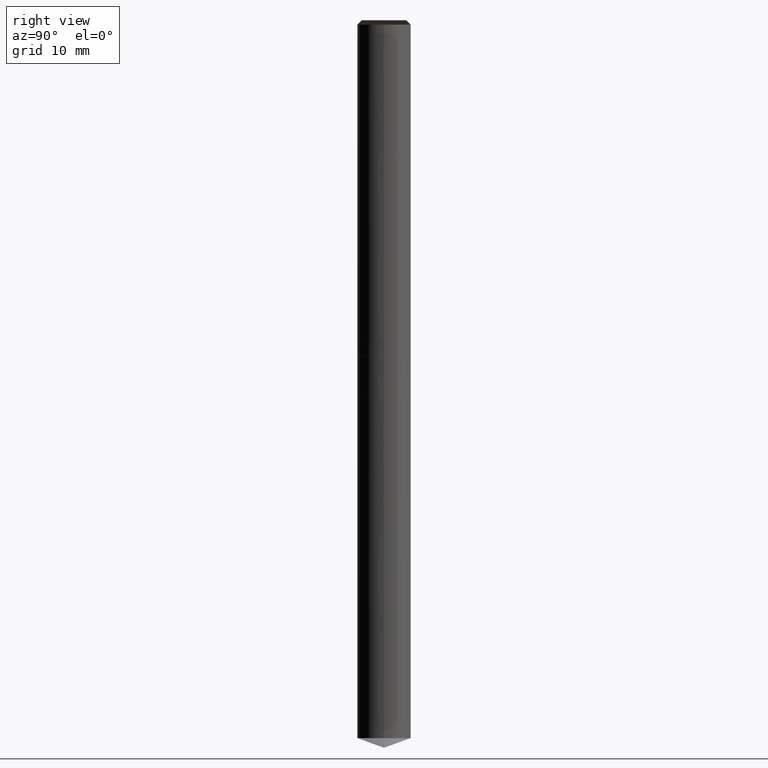
[diagram: clean part render]
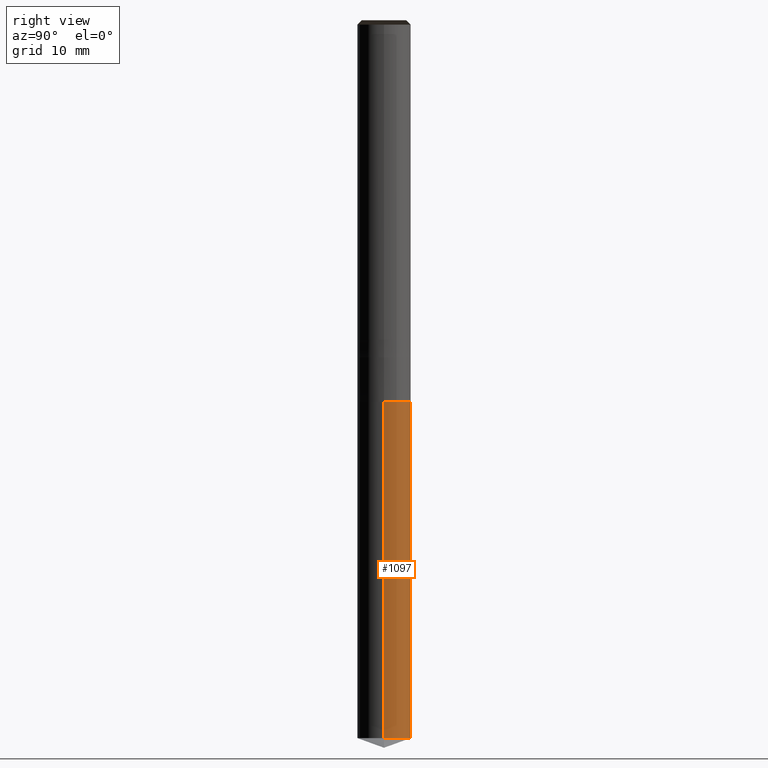
[diagram: same view with one face highlighted and labeled with its STEP entity id]
A machine part, right view. The second image highlights one B-rep face of the part: STEP entity #1097.
In plain terms, the highlighted face is a freeform B-spline surface patch.
Its self-contained STEP definition (entity closure, byte-faithful):
#1007=CARTESIAN_POINT('',(3.0,0.0,-44.908089297201));
#1008=CARTESIAN_POINT('',(3.0,3.0,-44.908089297201));
#1009=CARTESIAN_POINT('',(0.0,3.0,-44.908089297201));
#1010=CARTESIAN_POINT('',(-3.0,3.0,-44.908089297201));
#1011=CARTESIAN_POINT('',(-3.0,0.0,-44.908089297201));
#1012=CARTESIAN_POINT('',(3.0,0.0,-7.0));
#1013=CARTESIAN_POINT('',(3.0,3.0,-7.0));
#1014=CARTESIAN_POINT('',(0.0,3.0,-7.0));
#1015=CARTESIAN_POINT('',(-3.0,3.0,-7.0));
#1016=CARTESIAN_POINT('',(-3.0,0.0,-7.0));
#1078=(
BOUNDED_SURFACE()
B_SPLINE_SURFACE(1,2,(
(#1007,#1008,#1009,#1010,#1011),
(#1012,#1013,#1014,#1015,#1016)
), .UNSPECIFIED.,.F.,.F.,.F.)
B_SPLINE_SURFACE_WITH_KNOTS((2,2),(3,2,3),(
0.0,1.0),(
0.0,0.5,1.0), .UNSPECIFIED.)
GEOMETRIC_REPRESENTATION_ITEM()
RATIONAL_B_SPLINE_SURFACE(((1.0,0.707106781187,1.0,0.707106781187,1.0),
(1.0,0.707106781187,1.0,0.707106781187,1.0)
))
REPRESENTATION_ITEM('')
SURFACE()
);
#1079=(
BOUNDED_CURVE()
B_SPLINE_CURVE(2,(#1011,#1010,#1009,#1008,#1007),.UNSPECIFIED.,.F.,.F.)
B_SPLINE_CURVE_WITH_KNOTS((3,2,3),
(0.0,0.5,1.0),.UNSPECIFIED.)
CURVE()
GEOMETRIC_REPRESENTATION_ITEM()
RATIONAL_B_SPLINE_CURVE((1.0,0.707106781187,1.0,0.707106781187,1.0))
REPRESENTATION_ITEM('')
);
#1080=(
BOUNDED_CURVE()
B_SPLINE_CURVE(1,(#1007,#1012),.UNSPECIFIED.,.F.,.F.)
B_SPLINE_CURVE_WITH_KNOTS((2,2),
(0.0,1.0),.UNSPECIFIED.)
CURVE()
GEOMETRIC_REPRESENTATION_ITEM()
RATIONAL_B_SPLINE_CURVE((1.0,1.0))
REPRESENTATION_ITEM('')
);
#1081=(
BOUNDED_CURVE()
B_SPLINE_CURVE(2,(#1012,#1013,#1014,#1015,#1016),.UNSPECIFIED.,.F.,.F.)
B_SPLINE_CURVE_WITH_KNOTS((3,2,3),
(0.0,0.5,1.0),.UNSPECIFIED.)
CURVE()
GEOMETRIC_REPRESENTATION_ITEM()
RATIONAL_B_SPLINE_CURVE((1.0,0.707106781187,1.0,0.707106781187,1.0))
REPRESENTATION_ITEM('')
);
#1082=(
BOUNDED_CURVE()
B_SPLINE_CURVE(1,(#1016,#1011),.UNSPECIFIED.,.F.,.F.)
B_SPLINE_CURVE_WITH_KNOTS((2,2),
(0.0,1.0),.UNSPECIFIED.)
CURVE()
GEOMETRIC_REPRESENTATION_ITEM()
RATIONAL_B_SPLINE_CURVE((1.0,1.0))
REPRESENTATION_ITEM('')
);
#1083=VERTEX_POINT('',#1007);
#1084=VERTEX_POINT('',#1011);
#1085=VERTEX_POINT('',#1012);
#1086=VERTEX_POINT('',#1016);
#1087=EDGE_CURVE('',#1084,#1083,#1079,.T.);
#1088=EDGE_CURVE('',#1083,#1085,#1080,.T.);
#1089=EDGE_CURVE('',#1085,#1086,#1081,.T.);
#1090=EDGE_CURVE('',#1086,#1084,#1082,.T.);
#1091=ORIENTED_EDGE('',*,*,#1087,.T.);
#1092=ORIENTED_EDGE('',*,*,#1088,.T.);
#1093=ORIENTED_EDGE('',*,*,#1089,.T.);
#1094=ORIENTED_EDGE('',*,*,#1090,.T.);
#1095=EDGE_LOOP('',(#1091,#1092,#1093,#1094));
#1096=FACE_OUTER_BOUND('',#1095,.T.);
#1097=ADVANCED_FACE('',(#1096),#1078,.T.);